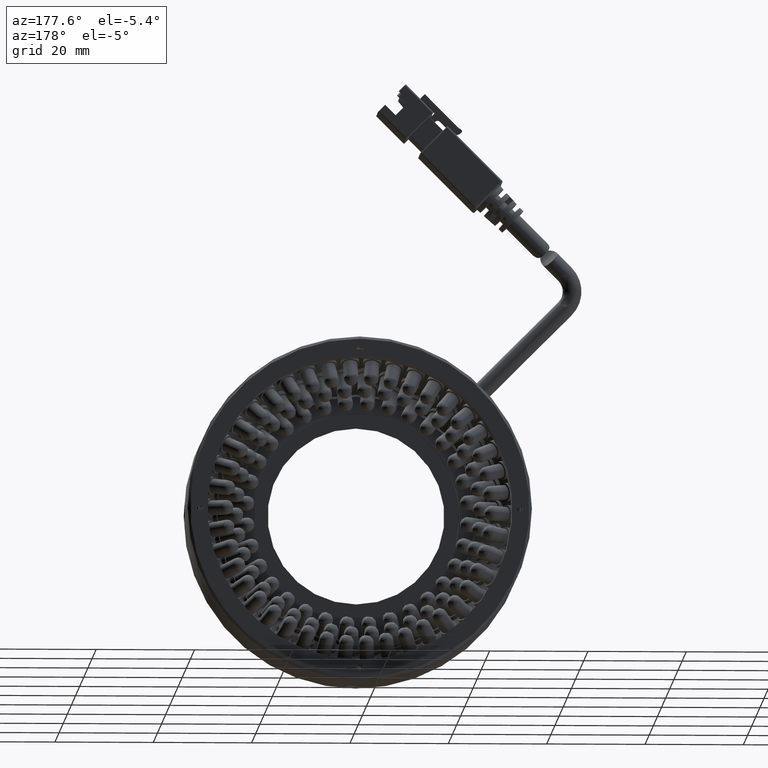
[diagram: clean part render]
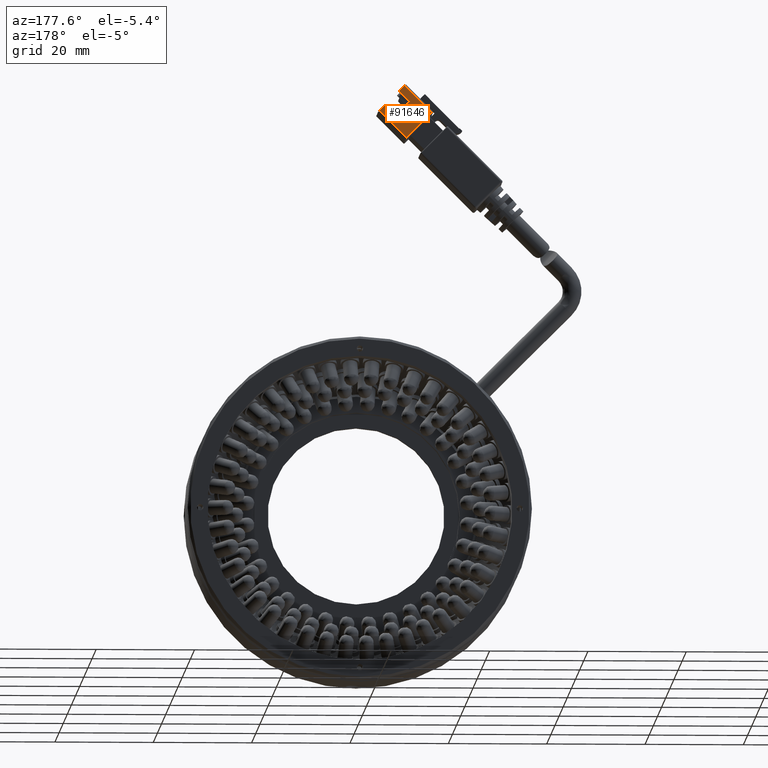
[diagram: same view with one face highlighted and labeled with its STEP entity id]
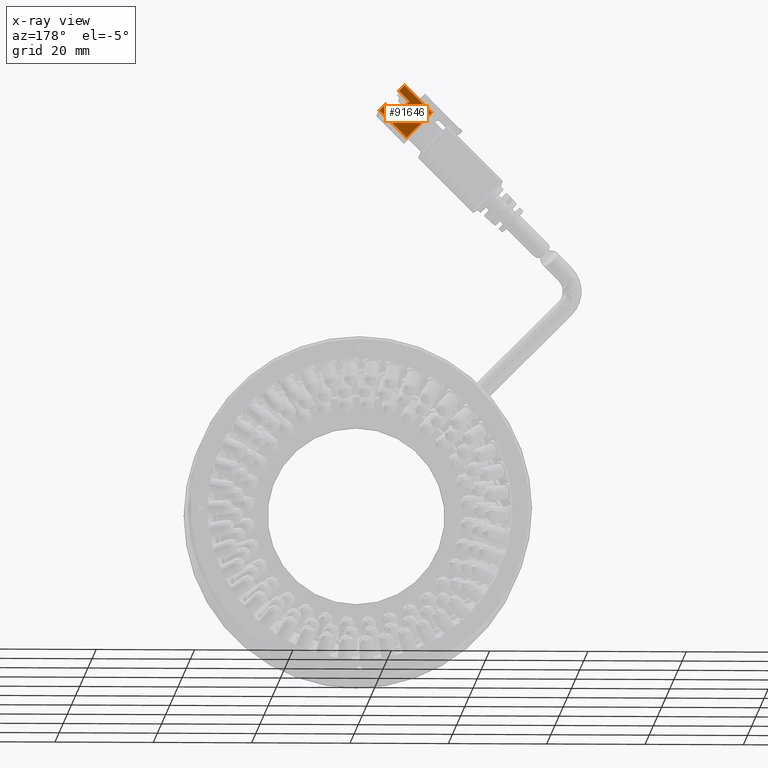
[diagram: x-ray of the same camera — body ghosted, the highlighted face saturated]
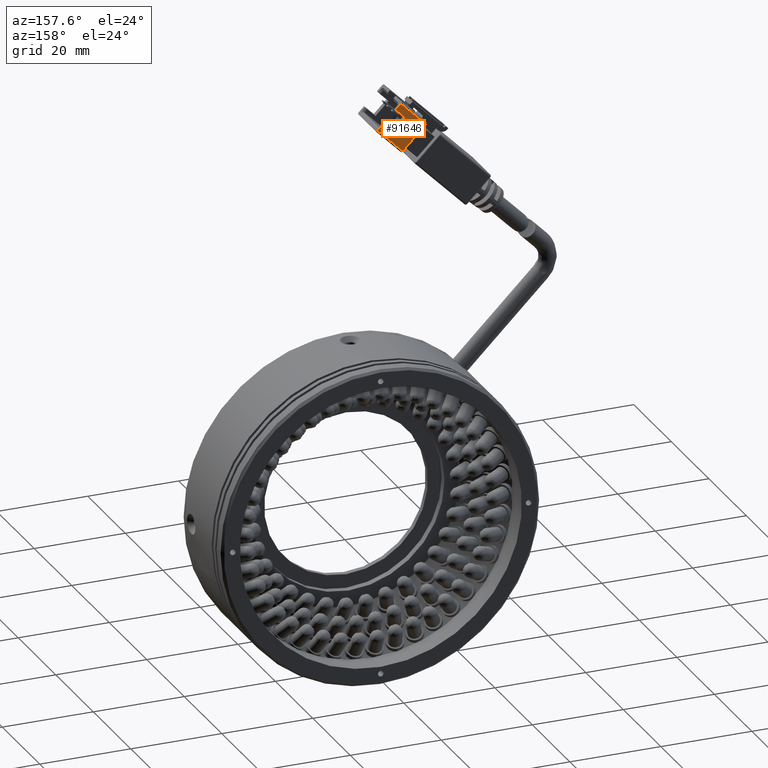
[diagram: same view with one face highlighted and labeled with its STEP entity id]
A machine part, auxiliary view. The second image highlights one B-rep face of the part: STEP entity #91646.
The next image is the same camera in x-ray: the body ghosted, the highlighted face saturated — about 0% of this face is hidden behind the body in this view.
A second angle (auxiliary view) of the same face is appended — the face is thin or edge-on in the first view.
In plain terms, the highlighted planar face has unit normal (0, -1, 0).
Its self-contained STEP definition (entity closure, byte-faithful):
#3393 = EDGE_CURVE ( 'NONE', #73605, #88657, #99146, .T. ) ;
#3442 = DIRECTION ( 'NONE',  ( 0.7071067811865439100, 4.906538933385555600E-018, -0.7071067811865512400 ) ) ;
#4307 = EDGE_CURVE ( 'NONE', #66906, #61872, #85083, .T. ) ;
#8268 = CARTESIAN_POINT ( 'NONE',  ( -45.70904493462289500, -18.18693679055955000, 73.16460181980377800 ) ) ;
#8325 = DIRECTION ( 'NONE',  ( 0.7071067811865512400, 2.404204077359530700E-016, 0.7071067811865439100 ) ) ;
#13900 = CARTESIAN_POINT ( 'NONE',  ( -47.12325849699598700, -18.18693679055955000, 74.57881538217688400 ) ) ;
#14204 = ORIENTED_EDGE ( 'NONE', *, *, #3393, .F. ) ;
#14789 = DIRECTION ( 'NONE',  ( -0.7071067811865439100, -4.906538933385555600E-018, 0.7071067811865512400 ) ) ;
#14867 = CARTESIAN_POINT ( 'NONE',  ( -41.46640424750364000, -18.18693679055955000, 68.92196113268445900 ) ) ;
#15229 = VERTEX_POINT ( 'NONE', #72338 ) ;
#15252 = LINE ( 'NONE', #60746, #76742 ) ;
#15613 = CARTESIAN_POINT ( 'NONE',  ( -47.26467985323335300, -18.18693679055955300, 63.68937095190405300 ) ) ;
#15717 = EDGE_CURVE ( 'NONE', #15229, #66906, #56365, .T. ) ;
#15740 = CARTESIAN_POINT ( 'NONE',  ( -45.70904493462289500, -18.18693679055955000, 73.16460181980377800 ) ) ;
#17908 = CARTESIAN_POINT ( 'NONE',  ( -52.35584867777647100, -18.18693679055955000, 68.78053977644721300 ) ) ;
#21695 = ORIENTED_EDGE ( 'NONE', *, *, #36939, .F. ) ;
#21902 = VERTEX_POINT ( 'NONE', #97540 ) ;
#22967 = DIRECTION ( 'NONE',  ( 0.7071067811865439100, 4.906538933385555600E-018, -0.7071067811865512400 ) ) ;
#24234 = CARTESIAN_POINT ( 'NONE',  ( -43.58772459106329200, -18.18693679055955000, 66.80064078912484100 ) ) ;
#29743 = VECTOR ( 'NONE', #14789, 999.9999999999998900 ) ;
#33002 = LINE ( 'NONE', #49205, #75645 ) ;
#33799 = DIRECTION ( 'NONE',  ( -0.7071067811865512400, -2.404204077359530700E-016, -0.7071067811865439100 ) ) ;
#35324 = VERTEX_POINT ( 'NONE', #17908 ) ;
#36053 = ORIENTED_EDGE ( 'NONE', *, *, #43362, .F. ) ;
#36939 = EDGE_CURVE ( 'NONE', #56093, #15229, #33002, .T. ) ;
#37181 = EDGE_CURVE ( 'NONE', #21902, #35324, #15252, .T. ) ;
#39568 = ORIENTED_EDGE ( 'NONE', *, *, #37181, .F. ) ;
#40208 = CARTESIAN_POINT ( 'NONE',  ( -42.88061780987673200, -18.18693679055955000, 70.33617469505756500 ) ) ;
#43362 = EDGE_CURVE ( 'NONE', #61872, #73605, #53198, .T. ) ;
#47356 = ORIENTED_EDGE ( 'NONE', *, *, #73382, .F. ) ;
#48847 = DIRECTION ( 'NONE',  ( 0.7071067811865512400, 2.404204077359530700E-016, 0.7071067811865439100 ) ) ;
#49205 = CARTESIAN_POINT ( 'NONE',  ( -41.74924695997825100, -18.18693679055955000, 69.20480384515909100 ) ) ;
#51457 = CARTESIAN_POINT ( 'NONE',  ( -46.98183714075873500, -18.18693679055955300, 63.40652823942942700 ) ) ;
#53198 = LINE ( 'NONE', #24234, #95856 ) ;
#56093 = VERTEX_POINT ( 'NONE', #15613 ) ;
#56365 = LINE ( 'NONE', #13900, #99021 ) ;
#60746 = CARTESIAN_POINT ( 'NONE',  ( -46.84041578452137600, -18.18693679055955000, 74.29597266970225200 ) ) ;
#61092 = ORIENTED_EDGE ( 'NONE', *, *, #82541, .F. ) ;
#61599 = CARTESIAN_POINT ( 'NONE',  ( -47.83036527818254800, -18.18693679055955000, 71.04328147624414700 ) ) ;
#61835 = VECTOR ( 'NONE', #3442, 999.9999999999998900 ) ;
#61872 = VERTEX_POINT ( 'NONE', #95166 ) ;
#63769 = VECTOR ( 'NONE', #33799, 999.9999999999998900 ) ;
#65709 = CARTESIAN_POINT ( 'NONE',  ( -42.88061780987673200, -18.18693679055955000, 70.33617469505756500 ) ) ;
#65748 = EDGE_LOOP ( 'NONE', ( #47356, #39568, #61092, #14204, #36053, #96231, #100723, #21695 ) ) ;
#66877 = FACE_OUTER_BOUND ( 'NONE', #65748, .T. ) ;
#66906 = VERTEX_POINT ( 'NONE', #40208 ) ;
#69625 = DIRECTION ( 'NONE',  ( -0.7071067811865439100, -4.906538933385555600E-018, 0.7071067811865512400 ) ) ;
#70888 = CARTESIAN_POINT ( 'NONE',  ( -41.46640424750364000, -18.18693679055955000, 68.92196113268445900 ) ) ;
#70974 = DIRECTION ( 'NONE',  ( 1.734723475976807300E-016, -1.000000000000000000, 1.665334536937734800E-016 ) ) ;
#71747 = AXIS2_PLACEMENT_3D ( 'NONE', #14867, #70974, #22967 ) ;
#72338 = CARTESIAN_POINT ( 'NONE',  ( -41.74924695997825100, -18.18693679055955000, 69.20480384515909100 ) ) ;
#73382 = EDGE_CURVE ( 'NONE', #35324, #56093, #90653, .T. ) ;
#73605 = VERTEX_POINT ( 'NONE', #61599 ) ;
#75645 = VECTOR ( 'NONE', #48847, 999.9999999999998900 ) ;
#76142 = DIRECTION ( 'NONE',  ( -0.7071067811865512400, -2.404204077359530700E-016, -0.7071067811865439100 ) ) ;
#76742 = VECTOR ( 'NONE', #76142, 999.9999999999998900 ) ;
#80254 = DIRECTION ( 'NONE',  ( -0.7071067811865439100, -4.906538933385555600E-018, 0.7071067811865512400 ) ) ;
#82541 = EDGE_CURVE ( 'NONE', #88657, #21902, #93704, .T. ) ;
#85083 = LINE ( 'NONE', #65709, #63769 ) ;
#86785 = PLANE ( 'NONE',  #71747 ) ;
#88657 = VERTEX_POINT ( 'NONE', #8268 ) ;
#90653 = LINE ( 'NONE', #51457, #61835 ) ;
#91646 = ADVANCED_FACE ( 'NONE', ( #66877 ), #86785, .F. ) ;
#93704 = LINE ( 'NONE', #70888, #29743 ) ;
#95166 = CARTESIAN_POINT ( 'NONE',  ( -45.00193815343637700, -18.18693679055955000, 68.21485435149793400 ) ) ;
#95856 = VECTOR ( 'NONE', #80254, 999.9999999999998900 ) ;
#96231 = ORIENTED_EDGE ( 'NONE', *, *, #4307, .F. ) ;
#96637 = VECTOR ( 'NONE', #8325, 999.9999999999998900 ) ;
#97540 = CARTESIAN_POINT ( 'NONE',  ( -46.84041578452137600, -18.18693679055955000, 74.29597266970225200 ) ) ;
#99021 = VECTOR ( 'NONE', #69625, 999.9999999999998900 ) ;
#99146 = LINE ( 'NONE', #15740, #96637 ) ;
#100723 = ORIENTED_EDGE ( 'NONE', *, *, #15717, .F. ) ;